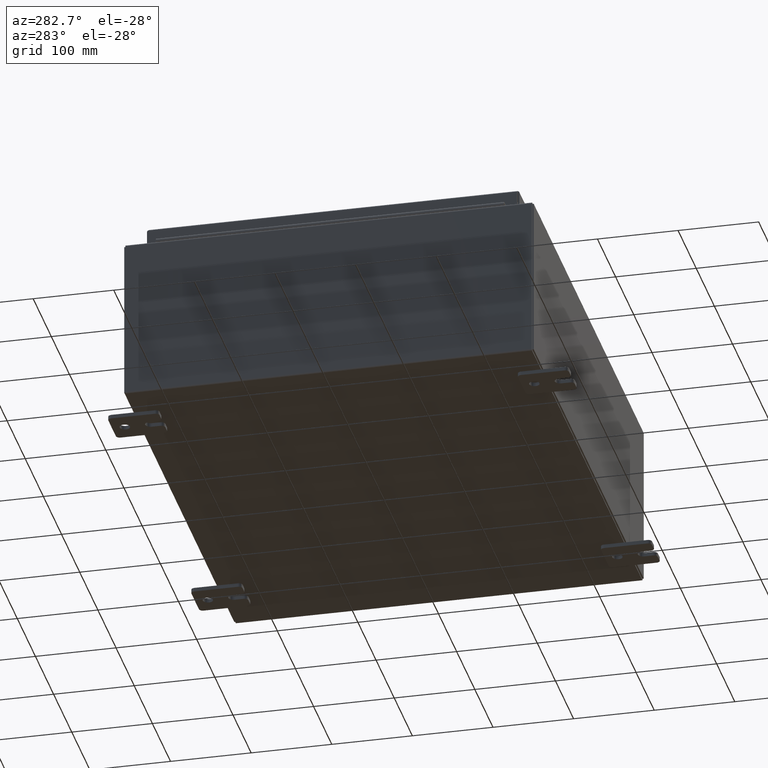
[diagram: clean part render]
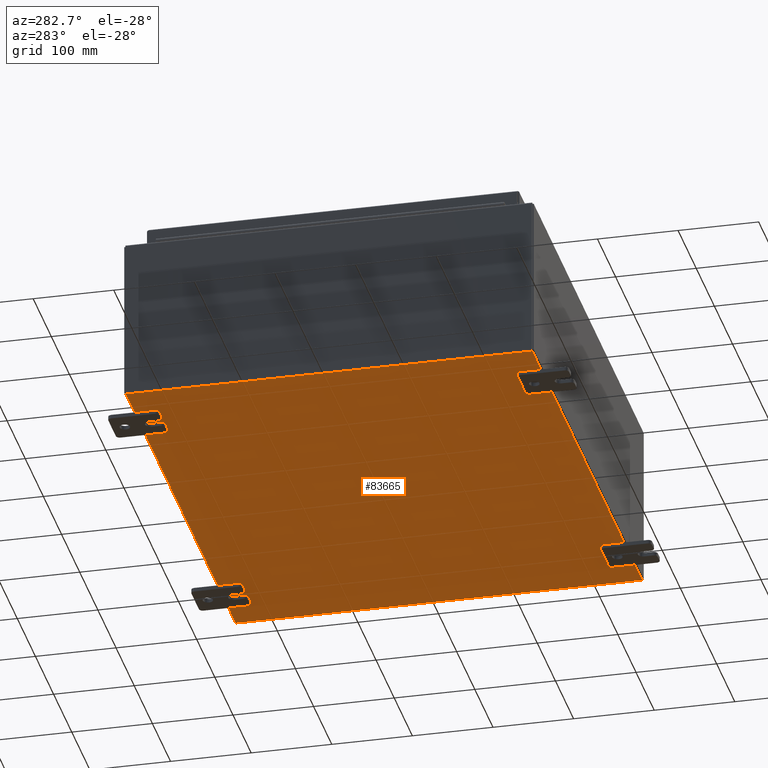
[diagram: same view with one face highlighted and labeled with its STEP entity id]
A machine part, auxiliary view. The second image highlights one B-rep face of the part: STEP entity #83665.
In plain terms, the highlighted planar face has unit normal (0, 0, -1).
Its self-contained STEP definition (entity closure, byte-faithful):
#356 = LINE ( 'NONE', #70955, #87365 ) ;
#921 = CARTESIAN_POINT ( 'NONE',  ( -12.00000000000000400, -9.925300000000000000, -0.07470000000000000300 ) ) ;
#4580 = ORIENTED_EDGE ( 'NONE', *, *, #64887, .T. ) ;
#5093 = VECTOR ( 'NONE', #66316, 39.37007874015748100 ) ;
#7745 = LINE ( 'NONE', #57806, #5093 ) ;
#14625 = EDGE_CURVE ( 'NONE', #96602, #38204, #105166, .T. ) ;
#15767 = ORIENTED_EDGE ( 'NONE', *, *, #14625, .F. ) ;
#18591 = CARTESIAN_POINT ( 'NONE',  ( 11.91229999999999800, 9.925299999999996500, -0.07469999999999994700 ) ) ;
#20510 = DIRECTION ( 'NONE',  ( -1.000000000000000000, -0.0000000000000000000, -0.0000000000000000000 ) ) ;
#23488 = VERTEX_POINT ( 'NONE', #18591 ) ;
#25556 = CARTESIAN_POINT ( 'NONE',  ( -11.91230000000000400, -9.925300000000000000, -0.07469999999999994700 ) ) ;
#26080 = CARTESIAN_POINT ( 'NONE',  ( -11.91230000000000400, 9.925300000000000000, -0.07470000000000000300 ) ) ;
#27589 = VERTEX_POINT ( 'NONE', #26080 ) ;
#28574 = LINE ( 'NONE', #107940, #48281 ) ;
#30666 = EDGE_CURVE ( 'NONE', #23488, #27589, #356, .T. ) ;
#31309 = ORIENTED_EDGE ( 'NONE', *, *, #60142, .T. ) ;
#38204 = VERTEX_POINT ( 'NONE', #44711 ) ;
#44111 = AXIS2_PLACEMENT_3D ( 'NONE', #45167, #104087, #53581 ) ;
#44484 = FACE_OUTER_BOUND ( 'NONE', #69608, .T. ) ;
#44711 = CARTESIAN_POINT ( 'NONE',  ( 11.91229999999998900, -9.925300000000000000, -0.07470000000000000300 ) ) ;
#45167 = CARTESIAN_POINT ( 'NONE',  ( 0.0000000000000000000, 0.0000000000000000000, -0.07470000000000000300 ) ) ;
#48281 = VECTOR ( 'NONE', #66619, 39.37007874015748100 ) ;
#51827 = DIRECTION ( 'NONE',  ( 1.000000000000000000, 0.0000000000000000000, 0.0000000000000000000 ) ) ;
#53581 = DIRECTION ( 'NONE',  ( -1.000000000000000000, 0.0000000000000000000, -0.0000000000000000000 ) ) ;
#56623 = ORIENTED_EDGE ( 'NONE', *, *, #30666, .F. ) ;
#57806 = CARTESIAN_POINT ( 'NONE',  ( -11.91230000000000400, -9.925300000000000000, -0.07469999999999994700 ) ) ;
#60142 = EDGE_CURVE ( 'NONE', #96602, #27589, #7745, .T. ) ;
#60290 = VECTOR ( 'NONE', #51827, 39.37007874015748100 ) ;
#61325 = PLANE ( 'NONE',  #44111 ) ;
#64887 = EDGE_CURVE ( 'NONE', #23488, #38204, #28574, .T. ) ;
#66316 = DIRECTION ( 'NONE',  ( -0.0000000000000000000, 1.000000000000000000, -0.0000000000000000000 ) ) ;
#66619 = DIRECTION ( 'NONE',  ( -0.0000000000000000000, -1.000000000000000000, -0.0000000000000000000 ) ) ;
#69608 = EDGE_LOOP ( 'NONE', ( #15767, #31309, #56623, #4580 ) ) ;
#70955 = CARTESIAN_POINT ( 'NONE',  ( -12.00000000000000400, 9.925300000000000000, -0.07470000000000000300 ) ) ;
#83665 = ADVANCED_FACE ( 'NONE', ( #44484 ), #61325, .T. ) ;
#87365 = VECTOR ( 'NONE', #20510, 39.37007874015748100 ) ;
#96602 = VERTEX_POINT ( 'NONE', #25556 ) ;
#104087 = DIRECTION ( 'NONE',  ( 0.0000000000000000000, 0.0000000000000000000, -1.000000000000000000 ) ) ;
#105166 = LINE ( 'NONE', #921, #60290 ) ;
#107940 = CARTESIAN_POINT ( 'NONE',  ( 11.91229999999999800, 9.925300000000000000, -0.07469999999999994700 ) ) ;